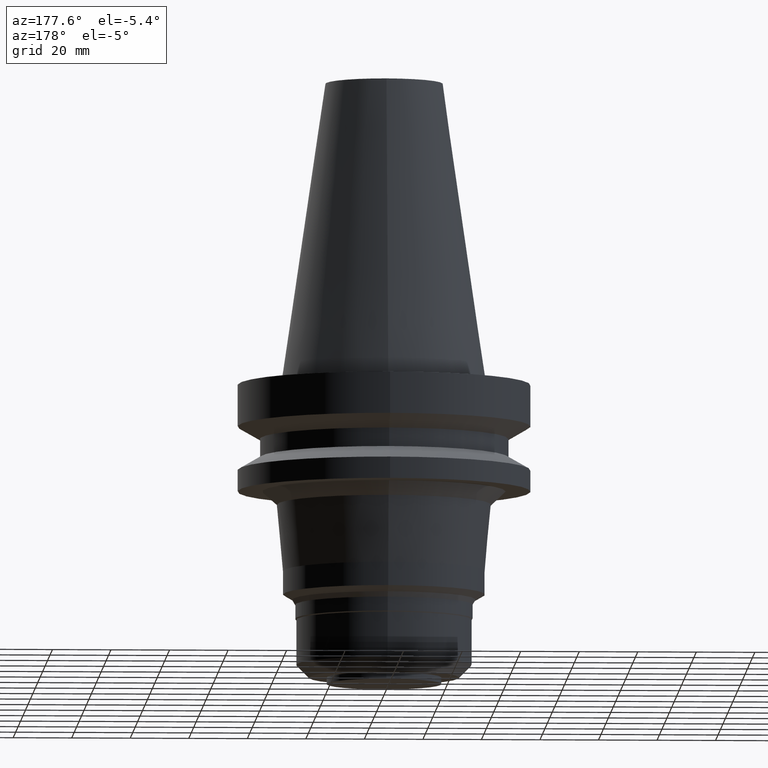
[diagram: clean part render]
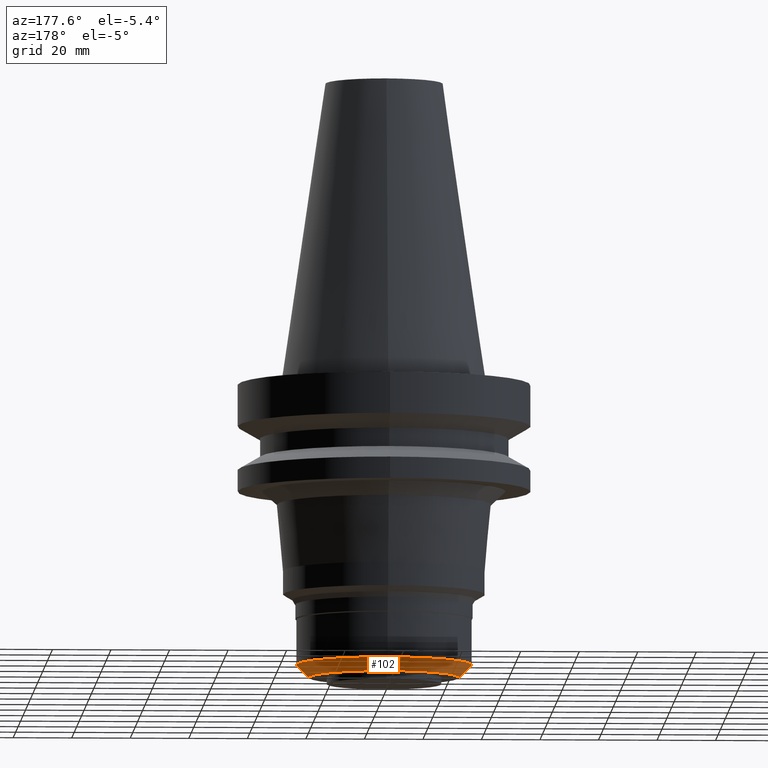
[diagram: same view with one face highlighted and labeled with its STEP entity id]
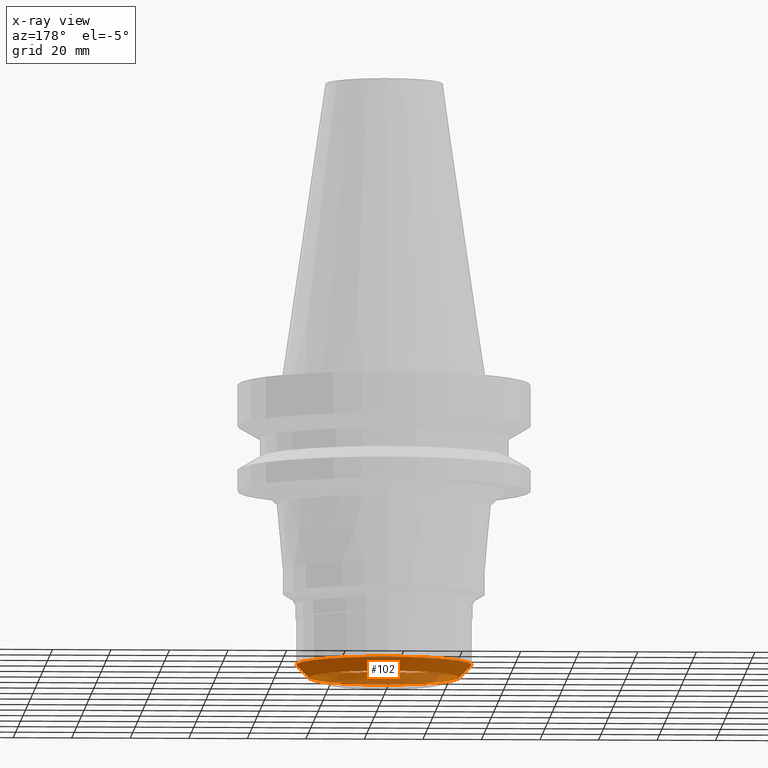
[diagram: x-ray of the same camera — body ghosted, the highlighted face saturated]
A machine part, auxiliary view. The second image highlights one B-rep face of the part: STEP entity #102.
The next image is the same camera in x-ray: the body ghosted, the highlighted face saturated — about 31% of this face is hidden behind the body in this view.
In plain terms, the highlighted conical surface has half-angle 45 deg.
Its self-contained STEP definition (entity closure, byte-faithful):
#99=EDGE_CURVE('Unnamed[1]',#241,#241,#242,.T.);
#102=ADVANCED_FACE('Unnamed[1]',(#245,#246),#247,.T.);
#158=EDGE_CURVE('Unnamed[1]',#335,#335,#336,.T.);
#241=VERTEX_POINT('',#434);
#242=CIRCLE('',#435,25.6553860970346);
#245=FACE_BOUND('',#439,.T.);
#246=FACE_BOUND('',#440,.T.);
#247=CONICAL_SURFACE('',#441,27.8276930485173,0.785398163397472);
#335=VERTEX_POINT('',#551);
#336=CIRCLE('',#552,30.0);
#434=CARTESIAN_POINT('',(6.23345220766002E-015,25.6553860970346,-101.8));
#435=AXIS2_PLACEMENT_3D('',#640,#641,#642);
#439=EDGE_LOOP('',(#644));
#440=EDGE_LOOP('',(#645));
#441=AXIS2_PLACEMENT_3D('',#646,#647,#648);
#551=CARTESIAN_POINT('',(5.96742133217014E-015,30.0,-97.4553860970345));
#552=AXIS2_PLACEMENT_3D('',#747,#748,#749);
#640=CARTESIAN_POINT('',(6.23345220766002E-015,1.246690441532E-014,-101.8));
#641=DIRECTION('',(6.12323399573677E-017,1.22464679914754E-016,-1.0));
#642=DIRECTION('',(-1.23259516440765E-032,1.0,1.22464679914754E-016));
#644=ORIENTED_EDGE('',*,*,#99,.F.);
#645=ORIENTED_EDGE('',*,*,#158,.T.);
#646=CARTESIAN_POINT('',(6.10043676991508E-015,1.22008735398302E-014,-99.6276930485172));
#647=DIRECTION('',(-6.12323399573677E-017,-1.22464679914779E-016,1.0));
#648=DIRECTION('',(-1.23259516440775E-032,1.0,1.22464679914779E-016));
#747=CARTESIAN_POINT('',(5.96742133217014E-015,1.19348426643403E-014,-97.4553860970345));
#748=DIRECTION('',(6.12323399573677E-017,1.22464679914693E-016,-1.0));
#749=DIRECTION('',(-1.23259516440783E-032,1.0,1.22464679914693E-016));